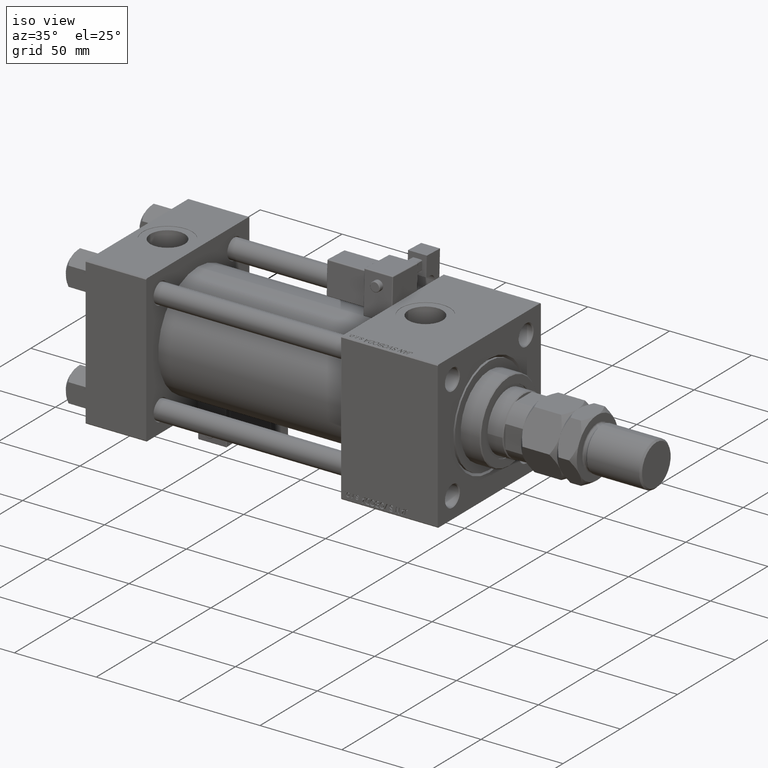
[diagram: clean part render]
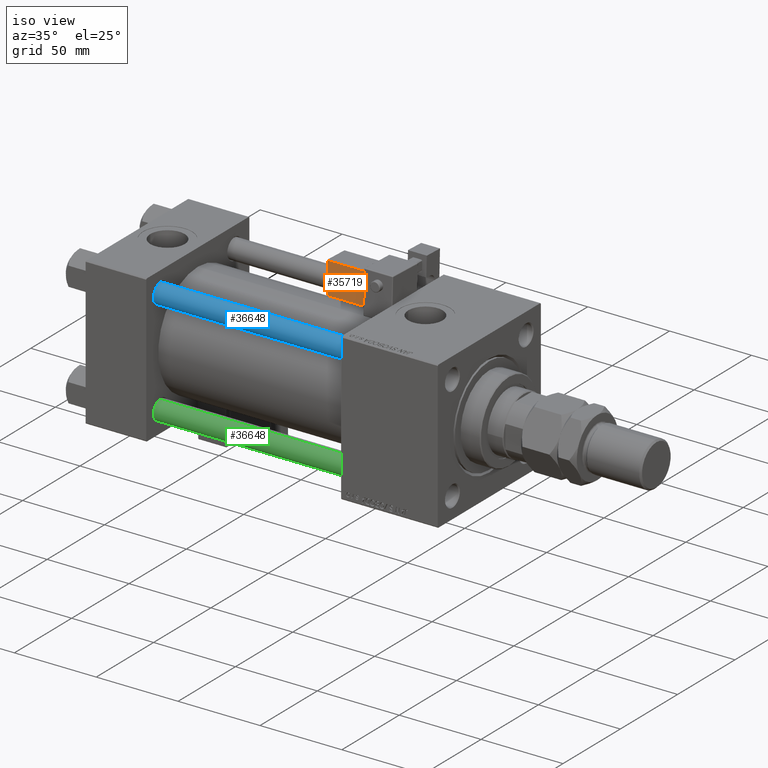
[diagram: same view with three faces highlighted in distinct colors, each labeled with its STEP entity id]
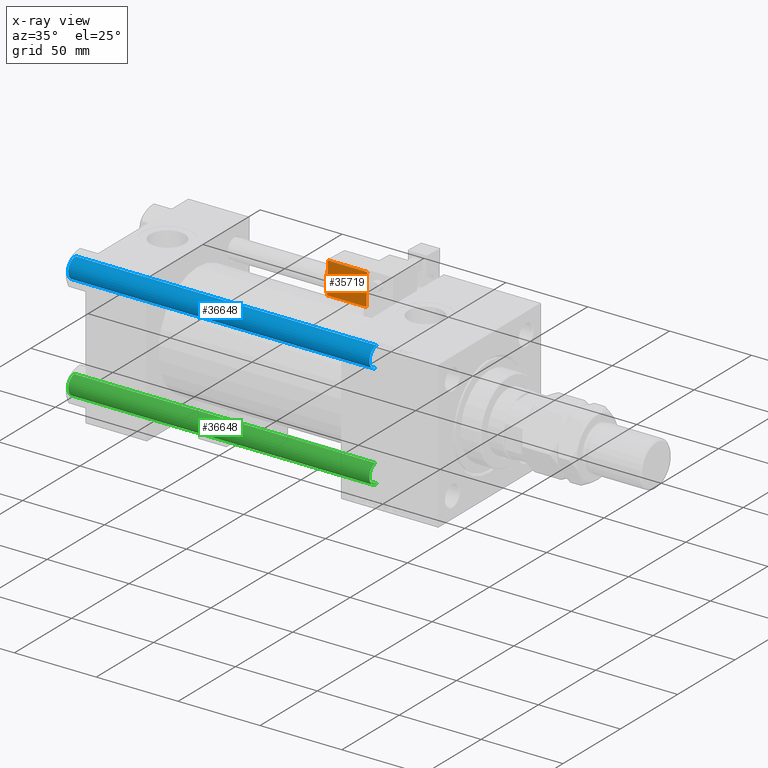
[diagram: x-ray of the same camera — body ghosted, the three highlighted faces saturated]
A machine part, iso view with three faces highlighted in distinct colors.
The next image is the same camera in x-ray (body ghosted, the three faces saturated) — at least one of them is partly hidden behind the body in this view.
Their STEP definitions:

[orange] entity #35719 — the highlighted planar face has unit normal (0, 0.9994, -0.0353).
#1085 = CARTESIAN_POINT ( 'NONE',  ( 33.75000000000000000, -36.25000000000000000, 21.50000000000000000 ) ) ;
#1170 = AXIS2_PLACEMENT_3D ( 'NONE', #53907, #45179, #11852 ) ;
#2553 = VERTEX_POINT ( 'NONE', #38932 ) ;
#4579 = CARTESIAN_POINT ( 'NONE',  ( 9.250000000000003553, -36.25000000000000000, 21.50000000000000000 ) ) ;
#5272 = EDGE_CURVE ( 'NONE', #34225, #50159, #5914, .T. ) ;
#5349 = ORIENTED_EDGE ( 'NONE', *, *, #47150, .T. ) ;
#5887 = DIRECTION ( 'NONE',  ( 1.334402673828313339E-16, 0.000000000000000000, -1.000000000000000000 ) ) ;
#5914 = LINE ( 'NONE', #26452, #26021 ) ;
#6129 = EDGE_CURVE ( 'NONE', #2553, #44568, #9852, .T. ) ;
#6466 = DIRECTION ( 'NONE',  ( 1.000000000000000000, -0.000000000000000000, 1.334402673828313339E-16 ) ) ;
#9472 = VECTOR ( 'NONE', #26526, 1000.000000000000000 ) ;
#9477 = DIRECTION ( 'NONE',  ( -1.734723475976807587E-16, -0.000000000000000000, 1.000000000000000000 ) ) ;
#9852 = LINE ( 'NONE', #1085, #9472 ) ;
#10008 = LINE ( 'NONE', #25882, #32192 ) ;
#10482 = VECTOR ( 'NONE', #5887, 1000.000000000000000 ) ;
#11852 = DIRECTION ( 'NONE',  ( 0.000000000000000000, -0.000000000000000000, 1.000000000000000000 ) ) ;
#16094 = CARTESIAN_POINT ( 'NONE',  ( 9.250000000000005329, -36.25000000000000000, 2.500000000000004885 ) ) ;
#22887 = CARTESIAN_POINT ( 'NONE',  ( 33.24999999999999289, -36.25000000000000000, 2.500000000000008438 ) ) ;
#24170 = PLANE ( 'NONE',  #1170 ) ;
#25882 = CARTESIAN_POINT ( 'NONE',  ( 33.24999999999999289, -36.25000000000000000, 22.00000000000000355 ) ) ;
#26021 = VECTOR ( 'NONE', #6466, 1000.000000000000000 ) ;
#26452 = CARTESIAN_POINT ( 'NONE',  ( 33.75000000000000000, -36.25000000000000000, 2.500000000000009326 ) ) ;
#26526 = DIRECTION ( 'NONE',  ( -1.000000000000000000, 0.000000000000000000, -1.334402673828313339E-16 ) ) ;
#31606 = LINE ( 'NONE', #43335, #10482 ) ;
#32192 = VECTOR ( 'NONE', #9477, 1000.000000000000000 ) ;
#34225 = VERTEX_POINT ( 'NONE', #16094 ) ;
#35719 = ADVANCED_FACE ( 'NONE', ( #53647 ), #24170, .F. ) ;
#38655 = EDGE_LOOP ( 'NONE', ( #5349, #46357, #42564, #48588 ) ) ;
#38932 = CARTESIAN_POINT ( 'NONE',  ( 33.24999999999999289, -36.25000000000000000, 21.50000000000000000 ) ) ;
#39885 = EDGE_CURVE ( 'NONE', #50159, #2553, #10008, .T. ) ;
#42564 = ORIENTED_EDGE ( 'NONE', *, *, #39885, .T. ) ;
#43335 = CARTESIAN_POINT ( 'NONE',  ( 9.250000000000005329, -36.25000000000000000, 2.000000000000005329 ) ) ;
#44568 = VERTEX_POINT ( 'NONE', #4579 ) ;
#45179 = DIRECTION ( 'NONE',  ( -0.000000000000000000, 1.000000000000000000, 0.000000000000000000 ) ) ;
#46357 = ORIENTED_EDGE ( 'NONE', *, *, #5272, .T. ) ;
#47150 = EDGE_CURVE ( 'NONE', #44568, #34225, #31606, .T. ) ;
#48588 = ORIENTED_EDGE ( 'NONE', *, *, #6129, .T. ) ;
#50159 = VERTEX_POINT ( 'NONE', #22887 ) ;
#53647 = FACE_OUTER_BOUND ( 'NONE', #38655, .T. ) ;
#53907 = CARTESIAN_POINT ( 'NONE',  ( 33.75000000000000000, -36.25000000000000000, 22.00000000000000355 ) ) ;

[blue] entity #36648 — the highlighted cylindrical surface (edge-blend (fillet) strip) has radius 6 mm, axis along (1, 0, -0).
#265 = DIRECTION ( 'NONE',  ( -0.000000000000000000, -0.000000000000000000, -1.000000000000000000 ) ) ;
#2260 = LINE ( 'NONE', #17888, #31891 ) ;
#2770 = CARTESIAN_POINT ( 'NONE',  ( 6.000000000000000888, 7.347880794884120722E-16, 185.0000000000000000 ) ) ;
#4425 = ORIENTED_EDGE ( 'NONE', *, *, #44133, .T. ) ;
#4878 = ORIENTED_EDGE ( 'NONE', *, *, #7881, .T. ) ;
#6369 = DIRECTION ( 'NONE',  ( -0.000000000000000000, -0.000000000000000000, -1.000000000000000000 ) ) ;
#7643 = AXIS2_PLACEMENT_3D ( 'NONE', #49364, #44999, #49105 ) ;
#7881 = EDGE_CURVE ( 'NONE', #30812, #13592, #39185, .T. ) ;
#8213 = CYLINDRICAL_SURFACE ( 'NONE', #43359, 6.000000000000000888 ) ;
#10787 = EDGE_CURVE ( 'NONE', #24770, #13592, #2260, .T. ) ;
#12621 = ORIENTED_EDGE ( 'NONE', *, *, #20317, .T. ) ;
#13592 = VERTEX_POINT ( 'NONE', #43535 ) ;
#16109 = EDGE_LOOP ( 'NONE', ( #12621, #4425, #4878, #32212 ) ) ;
#16500 = AXIS2_PLACEMENT_3D ( 'NONE', #23722, #23991, #19617 ) ;
#17888 = CARTESIAN_POINT ( 'NONE',  ( -6.000000000000000888, 0.000000000000000000, 185.0000000000000000 ) ) ;
#19413 = CARTESIAN_POINT ( 'NONE',  ( 6.000000000000000888, 7.347880794884120722E-16, 0.5000000000000281997 ) ) ;
#19617 = DIRECTION ( 'NONE',  ( 1.000000000000000000, 0.000000000000000000, 0.000000000000000000 ) ) ;
#20145 = VECTOR ( 'NONE', #44310, 1000.000000000000000 ) ;
#20317 = EDGE_CURVE ( 'NONE', #24770, #47700, #39946, .T. ) ;
#20405 = CARTESIAN_POINT ( 'NONE',  ( 0.000000000000000000, 0.000000000000000000, 185.0000000000000000 ) ) ;
#23722 = CARTESIAN_POINT ( 'NONE',  ( 0.000000000000000000, 0.000000000000000000, 0.5000000000000281997 ) ) ;
#23991 = DIRECTION ( 'NONE',  ( -0.000000000000000000, -0.000000000000000000, 1.000000000000000000 ) ) ;
#24770 = VERTEX_POINT ( 'NONE', #25805 ) ;
#25805 = CARTESIAN_POINT ( 'NONE',  ( -6.000000000000000888, 0.000000000000000000, 184.5000000000000000 ) ) ;
#29012 = FACE_OUTER_BOUND ( 'NONE', #16109, .T. ) ;
#30812 = VERTEX_POINT ( 'NONE', #19413 ) ;
#31891 = VECTOR ( 'NONE', #6369, 1000.000000000000000 ) ;
#32212 = ORIENTED_EDGE ( 'NONE', *, *, #10787, .F. ) ;
#36648 = ADVANCED_FACE ( 'NONE', ( #29012 ), #8213, .T. ) ;
#39185 = CIRCLE ( 'NONE', #16500, 6.000000000000000888 ) ;
#39946 = CIRCLE ( 'NONE', #7643, 6.000000000000000888 ) ;
#43359 = AXIS2_PLACEMENT_3D ( 'NONE', #20405, #265, #49478 ) ;
#43535 = CARTESIAN_POINT ( 'NONE',  ( -6.000000000000000888, 0.000000000000000000, 0.5000000000000281997 ) ) ;
#44133 = EDGE_CURVE ( 'NONE', #47700, #30812, #51952, .T. ) ;
#44310 = DIRECTION ( 'NONE',  ( -0.000000000000000000, -0.000000000000000000, -1.000000000000000000 ) ) ;
#44999 = DIRECTION ( 'NONE',  ( 0.000000000000000000, 0.000000000000000000, -1.000000000000000000 ) ) ;
#47700 = VERTEX_POINT ( 'NONE', #53422 ) ;
#49105 = DIRECTION ( 'NONE',  ( 1.000000000000000000, 0.000000000000000000, 0.000000000000000000 ) ) ;
#49364 = CARTESIAN_POINT ( 'NONE',  ( 0.000000000000000000, 0.000000000000000000, 184.5000000000000000 ) ) ;
#49478 = DIRECTION ( 'NONE',  ( -1.000000000000000000, 0.000000000000000000, 0.000000000000000000 ) ) ;
#51952 = LINE ( 'NONE', #2770, #20145 ) ;
#53422 = CARTESIAN_POINT ( 'NONE',  ( 6.000000000000000888, 7.347880794884120722E-16, 184.5000000000000000 ) ) ;

[green] entity #36648 — the highlighted cylindrical surface (edge-blend (fillet) strip) has radius 6 mm, axis along (-1, -0, -0).
#265 = DIRECTION ( 'NONE',  ( -0.000000000000000000, -0.000000000000000000, -1.000000000000000000 ) ) ;
#2260 = LINE ( 'NONE', #17888, #31891 ) ;
#2770 = CARTESIAN_POINT ( 'NONE',  ( 6.000000000000000888, 7.347880794884120722E-16, 185.0000000000000000 ) ) ;
#4425 = ORIENTED_EDGE ( 'NONE', *, *, #44133, .T. ) ;
#4878 = ORIENTED_EDGE ( 'NONE', *, *, #7881, .T. ) ;
#6369 = DIRECTION ( 'NONE',  ( -0.000000000000000000, -0.000000000000000000, -1.000000000000000000 ) ) ;
#7643 = AXIS2_PLACEMENT_3D ( 'NONE', #49364, #44999, #49105 ) ;
#7881 = EDGE_CURVE ( 'NONE', #30812, #13592, #39185, .T. ) ;
#8213 = CYLINDRICAL_SURFACE ( 'NONE', #43359, 6.000000000000000888 ) ;
#10787 = EDGE_CURVE ( 'NONE', #24770, #13592, #2260, .T. ) ;
#12621 = ORIENTED_EDGE ( 'NONE', *, *, #20317, .T. ) ;
#13592 = VERTEX_POINT ( 'NONE', #43535 ) ;
#16109 = EDGE_LOOP ( 'NONE', ( #12621, #4425, #4878, #32212 ) ) ;
#16500 = AXIS2_PLACEMENT_3D ( 'NONE', #23722, #23991, #19617 ) ;
#17888 = CARTESIAN_POINT ( 'NONE',  ( -6.000000000000000888, 0.000000000000000000, 185.0000000000000000 ) ) ;
#19413 = CARTESIAN_POINT ( 'NONE',  ( 6.000000000000000888, 7.347880794884120722E-16, 0.5000000000000281997 ) ) ;
#19617 = DIRECTION ( 'NONE',  ( 1.000000000000000000, 0.000000000000000000, 0.000000000000000000 ) ) ;
#20145 = VECTOR ( 'NONE', #44310, 1000.000000000000000 ) ;
#20317 = EDGE_CURVE ( 'NONE', #24770, #47700, #39946, .T. ) ;
#20405 = CARTESIAN_POINT ( 'NONE',  ( 0.000000000000000000, 0.000000000000000000, 185.0000000000000000 ) ) ;
#23722 = CARTESIAN_POINT ( 'NONE',  ( 0.000000000000000000, 0.000000000000000000, 0.5000000000000281997 ) ) ;
#23991 = DIRECTION ( 'NONE',  ( -0.000000000000000000, -0.000000000000000000, 1.000000000000000000 ) ) ;
#24770 = VERTEX_POINT ( 'NONE', #25805 ) ;
#25805 = CARTESIAN_POINT ( 'NONE',  ( -6.000000000000000888, 0.000000000000000000, 184.5000000000000000 ) ) ;
#29012 = FACE_OUTER_BOUND ( 'NONE', #16109, .T. ) ;
#30812 = VERTEX_POINT ( 'NONE', #19413 ) ;
#31891 = VECTOR ( 'NONE', #6369, 1000.000000000000000 ) ;
#32212 = ORIENTED_EDGE ( 'NONE', *, *, #10787, .F. ) ;
#36648 = ADVANCED_FACE ( 'NONE', ( #29012 ), #8213, .T. ) ;
#39185 = CIRCLE ( 'NONE', #16500, 6.000000000000000888 ) ;
#39946 = CIRCLE ( 'NONE', #7643, 6.000000000000000888 ) ;
#43359 = AXIS2_PLACEMENT_3D ( 'NONE', #20405, #265, #49478 ) ;
#43535 = CARTESIAN_POINT ( 'NONE',  ( -6.000000000000000888, 0.000000000000000000, 0.5000000000000281997 ) ) ;
#44133 = EDGE_CURVE ( 'NONE', #47700, #30812, #51952, .T. ) ;
#44310 = DIRECTION ( 'NONE',  ( -0.000000000000000000, -0.000000000000000000, -1.000000000000000000 ) ) ;
#44999 = DIRECTION ( 'NONE',  ( 0.000000000000000000, 0.000000000000000000, -1.000000000000000000 ) ) ;
#47700 = VERTEX_POINT ( 'NONE', #53422 ) ;
#49105 = DIRECTION ( 'NONE',  ( 1.000000000000000000, 0.000000000000000000, 0.000000000000000000 ) ) ;
#49364 = CARTESIAN_POINT ( 'NONE',  ( 0.000000000000000000, 0.000000000000000000, 184.5000000000000000 ) ) ;
#49478 = DIRECTION ( 'NONE',  ( -1.000000000000000000, 0.000000000000000000, 0.000000000000000000 ) ) ;
#51952 = LINE ( 'NONE', #2770, #20145 ) ;
#53422 = CARTESIAN_POINT ( 'NONE',  ( 6.000000000000000888, 7.347880794884120722E-16, 184.5000000000000000 ) ) ;